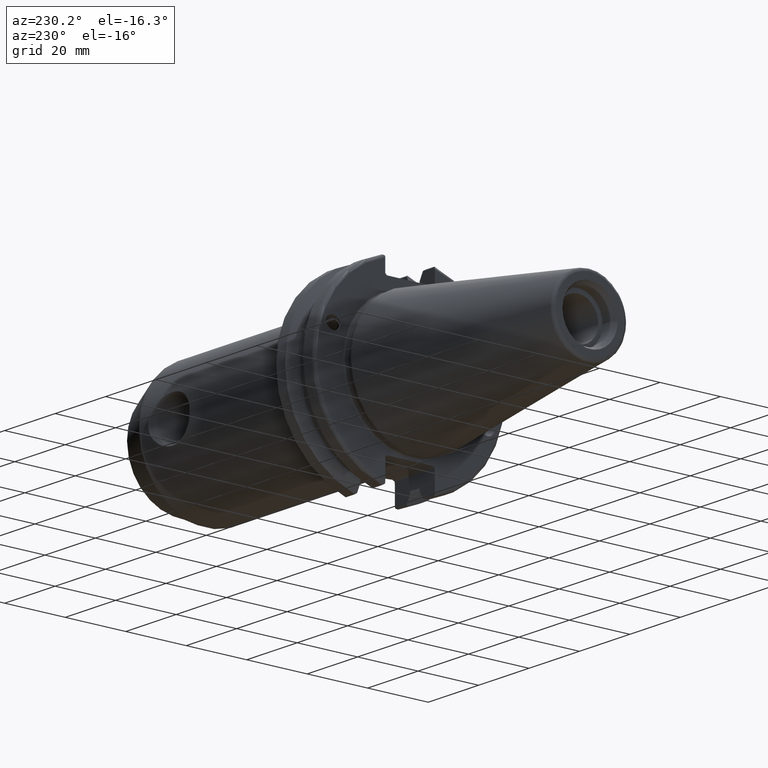
[diagram: clean part render]
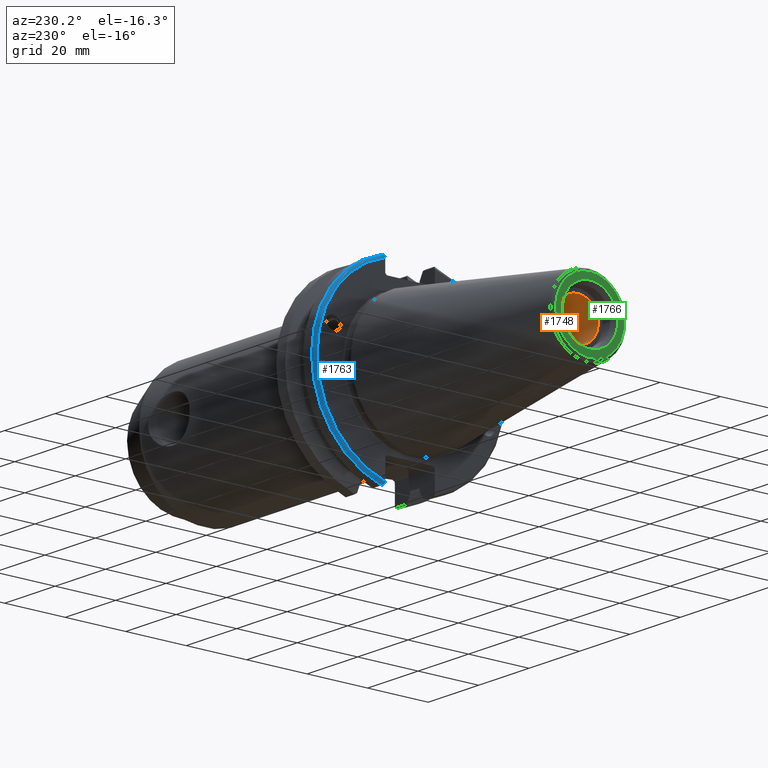
[diagram: same view with three faces highlighted in distinct colors, each labeled with its STEP entity id]
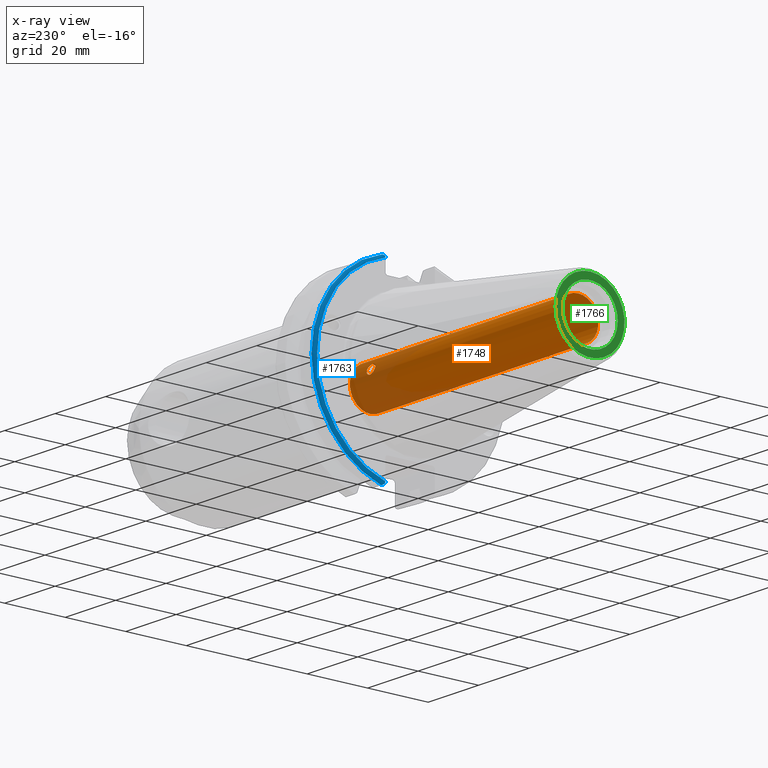
[diagram: x-ray of the same camera — body ghosted, the three highlighted faces saturated]
A machine part, auxiliary view with three faces highlighted in distinct colors.
The next image is the same camera in x-ray (body ghosted, the three faces saturated) — at least one of them is partly hidden behind the body in this view.
Their STEP definitions:

[orange] entity #1748 — the highlighted cylindrical surface (bore or boss wall) has radius 6.6929 mm, axis along (-1, 0, 0).
#80=FACE_BOUND('',#268,.T.);
#81=FACE_BOUND('',#269,.T.);
#169=FACE_OUTER_BOUND('',#267,.T.);
#267=EDGE_LOOP('',(#1397,#1398,#1399,#1400));
#268=EDGE_LOOP('',(#1401,#1402));
#269=EDGE_LOOP('',(#1403,#1404));
#335=B_SPLINE_CURVE_WITH_KNOTS('',3,(#2818,#2819,#2820,#2821,#2822,#2823,
#2824,#2825,#2826,#2827),.UNSPECIFIED.,.F.,.F.,(4,2,2,2,4),(0.,0.0613281361392537,
0.122656272278507,0.183976883359658,0.245297494440808),.UNSPECIFIED.);
#336=B_SPLINE_CURVE_WITH_KNOTS('',3,(#2828,#2829,#2830,#2831,#2832,#2833,
#2834,#2835,#2836,#2837,#2838,#2839,#2840,#2841,#2842,#2843,#2844,#2845,
#2846,#2847,#2848,#2849,#2850,#2851,#2852,#2853),.UNSPECIFIED.,.F.,.F.,
(4,2,2,2,2,2,2,2,2,2,2,2,4),(0.245297494440808,0.306618105521959,0.367938716603109,
0.429266852742363,0.490594988881616,0.55192312502087,0.613251261160123,
0.674571872241274,0.735892483322425,0.797213094403576,0.858533705484727,
0.91986184162398,0.981189977763234),.UNSPECIFIED.);
#342=B_SPLINE_CURVE_WITH_KNOTS('',3,(#3024,#3025,#3026,#3027,#3028,#3029,
#3030,#3031,#3032,#3033),.UNSPECIFIED.,.F.,.F.,(4,2,2,2,4),(0.,0.0613281361392537,
0.122656272278507,0.183976883359658,0.245297494440808),.UNSPECIFIED.);
#343=B_SPLINE_CURVE_WITH_KNOTS('',3,(#3034,#3035,#3036,#3037,#3038,#3039,
#3040,#3041,#3042,#3043,#3044,#3045,#3046,#3047,#3048,#3049,#3050,#3051,
#3052,#3053,#3054,#3055,#3056,#3057,#3058,#3059),.UNSPECIFIED.,.F.,.F.,
(4,2,2,2,2,2,2,2,2,2,2,2,4),(0.245297494440808,0.306618105521958,0.367938716603109,
0.429266852742363,0.490594988881616,0.55192312502087,0.613251261160123,
0.674571872241274,0.735892483322425,0.797213094403576,0.858533705484727,
0.91986184162398,0.981189977763234),.UNSPECIFIED.);
#407=LINE('',#3203,#497);
#497=VECTOR('',#2338,6.6929);
#614=CIRCLE('',#1945,6.6929);
#615=CIRCLE('',#1946,6.6929);
#711=VERTEX_POINT('',#2815);
#712=VERTEX_POINT('',#2817);
#752=VERTEX_POINT('',#3021);
#753=VERTEX_POINT('',#3023);
#782=VERTEX_POINT('',#3200);
#783=VERTEX_POINT('',#3202);
#918=EDGE_CURVE('',#712,#711,#335,.T.);
#919=EDGE_CURVE('',#711,#712,#336,.T.);
#973=EDGE_CURVE('',#753,#752,#342,.T.);
#974=EDGE_CURVE('',#752,#753,#343,.T.);
#1013=EDGE_CURVE('',#782,#782,#614,.T.);
#1014=EDGE_CURVE('',#782,#783,#407,.T.);
#1015=EDGE_CURVE('',#783,#783,#615,.T.);
#1397=ORIENTED_EDGE('',*,*,#1013,.F.);
#1398=ORIENTED_EDGE('',*,*,#1014,.T.);
#1399=ORIENTED_EDGE('',*,*,#1015,.F.);
#1400=ORIENTED_EDGE('',*,*,#1014,.F.);
#1401=ORIENTED_EDGE('',*,*,#918,.T.);
#1402=ORIENTED_EDGE('',*,*,#919,.T.);
#1403=ORIENTED_EDGE('',*,*,#973,.T.);
#1404=ORIENTED_EDGE('',*,*,#974,.T.);
#1697=CYLINDRICAL_SURFACE('',#1944,6.6929);
#1748=ADVANCED_FACE('',(#169,#80,#81),#1697,.F.);
#1944=AXIS2_PLACEMENT_3D('',#3199,#2334,#2335);
#1945=AXIS2_PLACEMENT_3D('',#3201,#2336,#2337);
#1946=AXIS2_PLACEMENT_3D('',#3204,#2339,#2340);
#2334=DIRECTION('center_axis',(-1.,0.,0.));
#2335=DIRECTION('ref_axis',(0.,0.,1.));
#2336=DIRECTION('center_axis',(1.,0.,0.));
#2337=DIRECTION('ref_axis',(0.,0.,1.));
#2338=DIRECTION('',(1.,0.,0.));
#2339=DIRECTION('center_axis',(-1.,0.,0.));
#2340=DIRECTION('ref_axis',(0.,0.,1.));
#2815=CARTESIAN_POINT('',(9.5131,-6.28926874165801,-2.28910661726437));
#2817=CARTESIAN_POINT('',(11.1341,-6.65643365521149,-0.697711547681304));
#2818=CARTESIAN_POINT('Ctrl Pts',(11.1341,-6.65643365521149,-0.697711547681303));
#2819=CARTESIAN_POINT('Ctrl Pts',(10.9296728795358,-6.65643365521149,-0.697711547681304));
#2820=CARTESIAN_POINT('Ctrl Pts',(10.7122033848255,-6.65241872830876,-0.739904750929791));
#2821=CARTESIAN_POINT('Ctrl Pts',(10.3130800424297,-6.63148496397672,-0.908592848123731));
#2822=CARTESIAN_POINT('Ctrl Pts',(10.1313519889354,-6.6140166083086,-1.03484342994688));
#2823=CARTESIAN_POINT('Ctrl Pts',(9.84442543070628,-6.5627497245329,-1.32152467584939));
#2824=CARTESIAN_POINT('Ctrl Pts',(9.71980042333311,-6.52541782463156,-1.501335759233));
#2825=CARTESIAN_POINT('Ctrl Pts',(9.55411567778177,-6.42387889335004,-1.88914446481651));
#2826=CARTESIAN_POINT('Ctrl Pts',(9.5131,-6.35917835562732,-2.0970315314809));
#2827=CARTESIAN_POINT('Ctrl Pts',(9.5131,-6.28926874165801,-2.28910661726437));
#2828=CARTESIAN_POINT('Ctrl Pts',(9.5131,-6.28926874165801,-2.28910661726437));
#2829=CARTESIAN_POINT('Ctrl Pts',(9.5131,-6.2193591276887,-2.48118170304783));
#2830=CARTESIAN_POINT('Ctrl Pts',(9.55411567778177,-6.13529538441206,-2.68202113925061));
#2831=CARTESIAN_POINT('Ctrl Pts',(9.71980042333311,-5.96380008760285,-3.0443678100846));
#2832=CARTESIAN_POINT('Ctrl Pts',(9.84442543070628,-5.87681764559004,-3.20610757402446));
#2833=CARTESIAN_POINT('Ctrl Pts',(10.1313519889354,-5.73181520422682,-3.45867186707276));
#2834=CARTESIAN_POINT('Ctrl Pts',(10.3130800424297,-5.66404443130517,-3.56661386630399));
#2835=CARTESIAN_POINT('Ctrl Pts',(10.7122033848255,-5.57165000636742,-3.70929241011646));
#2836=CARTESIAN_POINT('Ctrl Pts',(10.9296728795358,-5.54760435054967,-3.74419502426922));
#2837=CARTESIAN_POINT('Ctrl Pts',(11.3385271204642,-5.54760435054967,-3.74419502426922));
#2838=CARTESIAN_POINT('Ctrl Pts',(11.5559966151745,-5.57165000636742,-3.70929241011646));
#2839=CARTESIAN_POINT('Ctrl Pts',(11.9551199575703,-5.66404443130516,-3.566613866304));
#2840=CARTESIAN_POINT('Ctrl Pts',(12.1368480110646,-5.73181520422681,-3.45867186707276));
#2841=CARTESIAN_POINT('Ctrl Pts',(12.4237745692937,-5.87681764559004,-3.20610757402446));
#2842=CARTESIAN_POINT('Ctrl Pts',(12.5483995766669,-5.96380008760285,-3.04436781008461));
#2843=CARTESIAN_POINT('Ctrl Pts',(12.7140843222182,-6.13529538441206,-2.68202113925061));
#2844=CARTESIAN_POINT('Ctrl Pts',(12.7551,-6.2193591276887,-2.48118170304783));
#2845=CARTESIAN_POINT('Ctrl Pts',(12.7551,-6.35917835562732,-2.0970315314809));
#2846=CARTESIAN_POINT('Ctrl Pts',(12.7140843222182,-6.42387889335004,-1.88914446481651));
#2847=CARTESIAN_POINT('Ctrl Pts',(12.5483995766669,-6.52541782463156,-1.501335759233));
#2848=CARTESIAN_POINT('Ctrl Pts',(12.4237745692937,-6.5627497245329,-1.32152467584939));
#2849=CARTESIAN_POINT('Ctrl Pts',(12.1368480110646,-6.61401660830861,-1.03484342994688));
#2850=CARTESIAN_POINT('Ctrl Pts',(11.9551199575703,-6.63148496397672,-0.908592848123727));
#2851=CARTESIAN_POINT('Ctrl Pts',(11.5559966151745,-6.65241872830876,-0.739904750929788));
#2852=CARTESIAN_POINT('Ctrl Pts',(11.3385271204642,-6.65643365521149,-0.697711547681302));
#2853=CARTESIAN_POINT('Ctrl Pts',(11.1341,-6.65643365521149,-0.697711547681303));
#3021=CARTESIAN_POINT('',(9.5131,6.28926874165801,2.28910661726437));
#3023=CARTESIAN_POINT('',(11.1341,6.65643365521149,0.697711547681305));
#3024=CARTESIAN_POINT('Ctrl Pts',(11.1341,6.65643365521149,0.697711547681305));
#3025=CARTESIAN_POINT('Ctrl Pts',(10.9296728795358,6.65643365521149,0.697711547681305));
#3026=CARTESIAN_POINT('Ctrl Pts',(10.7122033848255,6.65241872830876,0.739904750929792));
#3027=CARTESIAN_POINT('Ctrl Pts',(10.3130800424297,6.63148496397672,0.908592848123732));
#3028=CARTESIAN_POINT('Ctrl Pts',(10.1313519889354,6.6140166083086,1.03484342994689));
#3029=CARTESIAN_POINT('Ctrl Pts',(9.84442543070628,6.5627497245329,1.32152467584939));
#3030=CARTESIAN_POINT('Ctrl Pts',(9.71980042333311,6.52541782463156,1.501335759233));
#3031=CARTESIAN_POINT('Ctrl Pts',(9.55411567778177,6.42387889335004,1.88914446481652));
#3032=CARTESIAN_POINT('Ctrl Pts',(9.5131,6.35917835562732,2.0970315314809));
#3033=CARTESIAN_POINT('Ctrl Pts',(9.5131,6.28926874165801,2.28910661726437));
#3034=CARTESIAN_POINT('Ctrl Pts',(9.5131,6.28926874165801,2.28910661726437));
#3035=CARTESIAN_POINT('Ctrl Pts',(9.5131,6.2193591276887,2.48118170304783));
#3036=CARTESIAN_POINT('Ctrl Pts',(9.55411567778177,6.13529538441205,2.68202113925061));
#3037=CARTESIAN_POINT('Ctrl Pts',(9.71980042333311,5.96380008760285,3.0443678100846));
#3038=CARTESIAN_POINT('Ctrl Pts',(9.84442543070628,5.87681764559004,3.20610757402446));
#3039=CARTESIAN_POINT('Ctrl Pts',(10.1313519889354,5.73181520422682,3.45867186707276));
#3040=CARTESIAN_POINT('Ctrl Pts',(10.3130800424297,5.66404443130517,3.56661386630399));
#3041=CARTESIAN_POINT('Ctrl Pts',(10.7122033848255,5.57165000636742,3.70929241011646));
#3042=CARTESIAN_POINT('Ctrl Pts',(10.9296728795358,5.54760435054967,3.74419502426922));
#3043=CARTESIAN_POINT('Ctrl Pts',(11.3385271204642,5.54760435054967,3.74419502426922));
#3044=CARTESIAN_POINT('Ctrl Pts',(11.5559966151745,5.57165000636742,3.70929241011646));
#3045=CARTESIAN_POINT('Ctrl Pts',(11.9551199575703,5.66404443130516,3.566613866304));
#3046=CARTESIAN_POINT('Ctrl Pts',(12.1368480110646,5.73181520422681,3.45867186707277));
#3047=CARTESIAN_POINT('Ctrl Pts',(12.4237745692937,5.87681764559004,3.20610757402446));
#3048=CARTESIAN_POINT('Ctrl Pts',(12.5483995766669,5.96380008760285,3.04436781008461));
#3049=CARTESIAN_POINT('Ctrl Pts',(12.7140843222182,6.13529538441206,2.68202113925062));
#3050=CARTESIAN_POINT('Ctrl Pts',(12.7551,6.2193591276887,2.48118170304783));
#3051=CARTESIAN_POINT('Ctrl Pts',(12.7551,6.35917835562732,2.0970315314809));
#3052=CARTESIAN_POINT('Ctrl Pts',(12.7140843222182,6.42387889335004,1.88914446481651));
#3053=CARTESIAN_POINT('Ctrl Pts',(12.5483995766669,6.52541782463156,1.501335759233));
#3054=CARTESIAN_POINT('Ctrl Pts',(12.4237745692937,6.5627497245329,1.32152467584939));
#3055=CARTESIAN_POINT('Ctrl Pts',(12.1368480110646,6.61401660830861,1.03484342994688));
#3056=CARTESIAN_POINT('Ctrl Pts',(11.9551199575703,6.63148496397672,0.908592848123728));
#3057=CARTESIAN_POINT('Ctrl Pts',(11.5559966151745,6.65241872830876,0.73990475092979));
#3058=CARTESIAN_POINT('Ctrl Pts',(11.3385271204642,6.65643365521149,0.697711547681304));
#3059=CARTESIAN_POINT('Ctrl Pts',(11.1341,6.65643365521149,0.697711547681304));
#3199=CARTESIAN_POINT('Origin',(55.7901307834181,0.,0.));
#3200=CARTESIAN_POINT('',(-63.45,8.19643856201332E-16,-6.6929));
#3201=CARTESIAN_POINT('Origin',(-63.45,0.,0.));
#3202=CARTESIAN_POINT('',(19.05,-8.19643856201332E-16,-6.6929));
#3203=CARTESIAN_POINT('',(55.7901307834181,-8.19643856201332E-16,-6.6929));
#3204=CARTESIAN_POINT('Origin',(19.05,0.,0.));

[blue] entity #1763 — the highlighted toroidal blend (fillet) surface has major radius 30.75 mm and minor (blend) radius 1 mm.
#57=TOROIDAL_SURFACE('',#1975,30.75,1.);
#184=FACE_OUTER_BOUND('',#288,.T.);
#288=EDGE_LOOP('',(#1510,#1511,#1512,#1513,#1514,#1515));
#353=B_SPLINE_CURVE_WITH_KNOTS('',3,(#3293,#3294,#3295,#3296,#3297,#3298),
 .UNSPECIFIED.,.F.,.F.,(4,2,4),(0.0977210450333169,0.111963554372601,0.150804064902975),
 .UNSPECIFIED.);
#362=B_SPLINE_CURVE_WITH_KNOTS('',3,(#3411,#3412,#3413,#3414,#3415,#3416,
#3417,#3418),.UNSPECIFIED.,.F.,.F.,(4,2,2,4),(-0.104180282751876,-0.072978474246144,
-0.0343524753874979,0.),.UNSPECIFIED.);
#363=B_SPLINE_CURVE_WITH_KNOTS('',3,(#3421,#3422,#3423,#3424,#3425,#3426,
#3427,#3428),.UNSPECIFIED.,.F.,.F.,(4,2,2,4),(0.,0.0343524753874975,0.0729784742461445,
0.104180282751877),.UNSPECIFIED.);
#364=B_SPLINE_CURVE_WITH_KNOTS('',3,(#3429,#3430,#3431,#3432,#3433,#3434),
 .UNSPECIFIED.,.F.,.F.,(4,2,4),(0.452741154494498,0.491581665024872,0.505824174364157),
 .UNSPECIFIED.);
#623=CIRCLE('',#1956,30.75);
#630=CIRCLE('',#1976,31.75);
#795=VERTEX_POINT('',#3229);
#796=VERTEX_POINT('',#3231);
#809=VERTEX_POINT('',#3292);
#825=VERTEX_POINT('',#3409);
#826=VERTEX_POINT('',#3410);
#827=VERTEX_POINT('',#3419);
#1028=EDGE_CURVE('',#796,#795,#623,.T.);
#1046=EDGE_CURVE('',#809,#796,#353,.T.);
#1075=EDGE_CURVE('',#825,#826,#362,.T.);
#1076=EDGE_CURVE('',#826,#827,#630,.T.);
#1077=EDGE_CURVE('',#827,#809,#363,.T.);
#1078=EDGE_CURVE('',#795,#825,#364,.T.);
#1510=ORIENTED_EDGE('',*,*,#1075,.T.);
#1511=ORIENTED_EDGE('',*,*,#1076,.T.);
#1512=ORIENTED_EDGE('',*,*,#1077,.T.);
#1513=ORIENTED_EDGE('',*,*,#1046,.T.);
#1514=ORIENTED_EDGE('',*,*,#1028,.T.);
#1515=ORIENTED_EDGE('',*,*,#1078,.T.);
#1763=ADVANCED_FACE('',(#184),#57,.T.);
#1956=AXIS2_PLACEMENT_3D('',#3232,#2364,#2365);
#1975=AXIS2_PLACEMENT_3D('',#3408,#2423,#2424);
#1976=AXIS2_PLACEMENT_3D('',#3420,#2425,#2426);
#2364=DIRECTION('center_axis',(1.,0.,0.));
#2365=DIRECTION('ref_axis',(0.,1.,1.60812264967664E-16));
#2423=DIRECTION('center_axis',(1.,0.,0.));
#2424=DIRECTION('ref_axis',(0.,0.,-1.));
#2425=DIRECTION('center_axis',(-1.,0.,0.));
#2426=DIRECTION('ref_axis',(0.,1.,1.60812264967664E-16));
#3229=CARTESIAN_POINT('',(3.175,8.19,29.6392712461019));
#3231=CARTESIAN_POINT('',(3.175,8.18999999999999,-29.6392712461019));
#3232=CARTESIAN_POINT('Origin',(3.175,0.,0.));
#3292=CARTESIAN_POINT('',(3.31912772509028,8.19,-30.1755016258903));
#3293=CARTESIAN_POINT('Ctrl Pts',(3.31912772509028,8.19,-30.1755016258903));
#3294=CARTESIAN_POINT('Ctrl Pts',(3.29318362718666,8.19,-30.131014531546));
#3295=CARTESIAN_POINT('Ctrl Pts',(3.27103565282437,8.19,-30.0852355256475));
#3296=CARTESIAN_POINT('Ctrl Pts',(3.20451443291695,8.19,-29.9212724384851));
#3297=CARTESIAN_POINT('Ctrl Pts',(3.175,8.19,-29.7687396145364));
#3298=CARTESIAN_POINT('Ctrl Pts',(3.175,8.19,-29.6392712461019));
#3408=CARTESIAN_POINT('Origin',(4.175,0.,0.));
#3409=CARTESIAN_POINT('',(3.31912772509028,8.19,30.1755016258903));
#3410=CARTESIAN_POINT('',(4.175,8.67204822802685,30.5427254764662));
#3411=CARTESIAN_POINT('Ctrl Pts',(3.31912772509028,8.19,30.1755016258903));
#3412=CARTESIAN_POINT('Ctrl Pts',(3.36755369570114,8.2703682833078,30.2367261024977));
#3413=CARTESIAN_POINT('Ctrl Pts',(3.43232973376814,8.34909446036477,30.2966996242308));
#3414=CARTESIAN_POINT('Ctrl Pts',(3.58532758094931,8.48862804755884,30.4029961692546));
#3415=CARTESIAN_POINT('Ctrl Pts',(3.70655857052286,8.56482138642532,30.4610401774263));
#3416=CARTESIAN_POINT('Ctrl Pts',(3.92668295662254,8.6471881193939,30.5237870709558));
#3417=CARTESIAN_POINT('Ctrl Pts',(4.06049174870834,8.67204822802686,30.5427254764662));
#3418=CARTESIAN_POINT('Ctrl Pts',(4.175,8.67204822802686,30.5427254764662));
#3419=CARTESIAN_POINT('',(4.175,8.67204822802685,-30.5427254764662));
#3420=CARTESIAN_POINT('Origin',(4.175,0.,0.));
#3421=CARTESIAN_POINT('Ctrl Pts',(4.175,8.67204822802685,-30.5427254764662));
#3422=CARTESIAN_POINT('Ctrl Pts',(4.06049174870834,8.67204822802685,-30.5427254764662));
#3423=CARTESIAN_POINT('Ctrl Pts',(3.92668295662254,8.6471881193939,-30.5237870709558));
#3424=CARTESIAN_POINT('Ctrl Pts',(3.70655857052286,8.56482138642533,-30.4610401774263));
#3425=CARTESIAN_POINT('Ctrl Pts',(3.58532758094931,8.48862804755884,-30.4029961692546));
#3426=CARTESIAN_POINT('Ctrl Pts',(3.43232973376814,8.34909446036477,-30.2966996242308));
#3427=CARTESIAN_POINT('Ctrl Pts',(3.36755369570113,8.2703682833078,-30.2367261024977));
#3428=CARTESIAN_POINT('Ctrl Pts',(3.31912772509028,8.18999999999999,-30.1755016258903));
#3429=CARTESIAN_POINT('Ctrl Pts',(3.175,8.19,29.6392712461018));
#3430=CARTESIAN_POINT('Ctrl Pts',(3.175,8.19,29.7687396145364));
#3431=CARTESIAN_POINT('Ctrl Pts',(3.20451443291695,8.19,29.9212724384851));
#3432=CARTESIAN_POINT('Ctrl Pts',(3.27103565282437,8.19,30.0852355256475));
#3433=CARTESIAN_POINT('Ctrl Pts',(3.29318362718666,8.19,30.131014531546));
#3434=CARTESIAN_POINT('Ctrl Pts',(3.31912772509028,8.19,30.1755016258903));

[green] entity #1766 — the highlighted planar face has unit normal (-1, 0, 0).
#86=FACE_BOUND('',#292,.T.);
#111=PLANE('',#1985);
#187=FACE_OUTER_BOUND('',#291,.T.);
#291=EDGE_LOOP('',(#1527,#1528));
#292=EDGE_LOOP('',(#1529,#1530));
#634=CIRCLE('',#1982,11.4071305970304);
#635=CIRCLE('',#1983,11.4071305970304);
#637=CIRCLE('',#1986,9.15);
#638=CIRCLE('',#1987,9.15);
#831=VERTEX_POINT('',#3443);
#832=VERTEX_POINT('',#3445);
#833=VERTEX_POINT('',#3450);
#834=VERTEX_POINT('',#3451);
#1083=EDGE_CURVE('',#831,#832,#634,.T.);
#1084=EDGE_CURVE('',#832,#831,#635,.T.);
#1086=EDGE_CURVE('',#833,#834,#637,.T.);
#1087=EDGE_CURVE('',#834,#833,#638,.T.);
#1527=ORIENTED_EDGE('',*,*,#1084,.F.);
#1528=ORIENTED_EDGE('',*,*,#1083,.F.);
#1529=ORIENTED_EDGE('',*,*,#1086,.T.);
#1530=ORIENTED_EDGE('',*,*,#1087,.T.);
#1766=ADVANCED_FACE('',(#187,#86),#111,.T.);
#1982=AXIS2_PLACEMENT_3D('',#3446,#2438,#2439);
#1983=AXIS2_PLACEMENT_3D('',#3447,#2440,#2441);
#1985=AXIS2_PLACEMENT_3D('',#3449,#2444,#2445);
#1986=AXIS2_PLACEMENT_3D('',#3452,#2446,#2447);
#1987=AXIS2_PLACEMENT_3D('',#3453,#2448,#2449);
#2438=DIRECTION('center_axis',(1.,0.,0.));
#2439=DIRECTION('ref_axis',(0.,-1.,1.83697019872103E-16));
#2440=DIRECTION('center_axis',(1.,0.,0.));
#2441=DIRECTION('ref_axis',(0.,-1.,1.83697019872103E-16));
#2444=DIRECTION('center_axis',(-1.,0.,0.));
#2445=DIRECTION('ref_axis',(0.,0.,1.));
#2446=DIRECTION('center_axis',(1.,0.,0.));
#2447=DIRECTION('ref_axis',(0.,0.,-1.));
#2448=DIRECTION('center_axis',(1.,0.,0.));
#2449=DIRECTION('ref_axis',(0.,0.,-1.));
#3443=CARTESIAN_POINT('',(-68.25,-1.39697059731091E-15,11.4071305970304));
#3445=CARTESIAN_POINT('',(-68.25,11.4071305970304,-6.98485298655456E-16));
#3446=CARTESIAN_POINT('Origin',(-68.25,0.,0.));
#3447=CARTESIAN_POINT('Origin',(-68.25,0.,0.));
#3449=CARTESIAN_POINT('Origin',(-68.25,12.271875,0.));
#3450=CARTESIAN_POINT('',(-68.25,9.15,0.));
#3451=CARTESIAN_POINT('',(-68.25,-9.15,-1.12055182121983E-15));
#3452=CARTESIAN_POINT('Origin',(-68.25,0.,0.));
#3453=CARTESIAN_POINT('Origin',(-68.25,0.,0.));